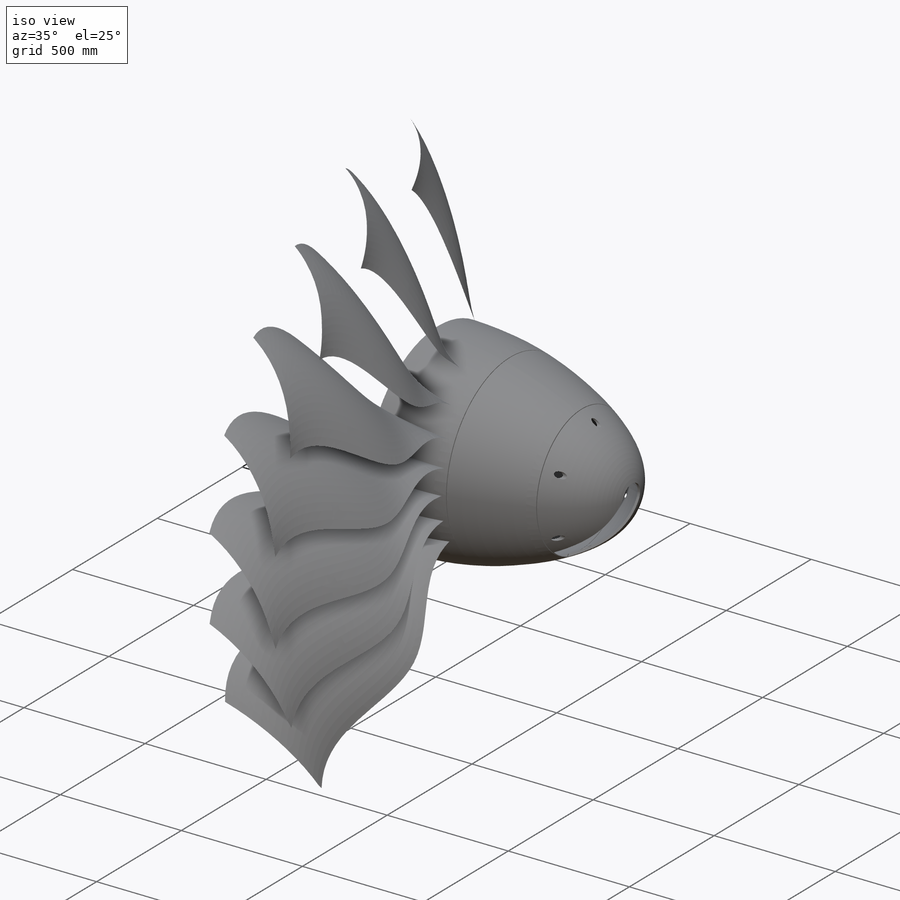
[diagram: iso view]
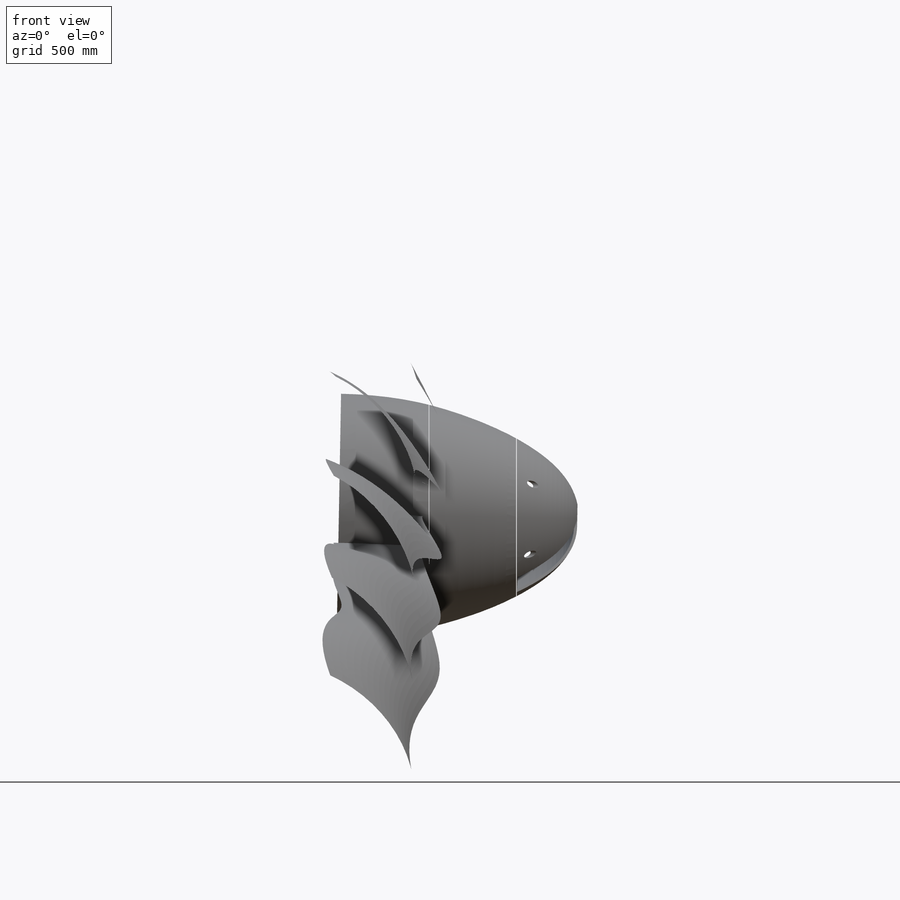
[diagram: front view]
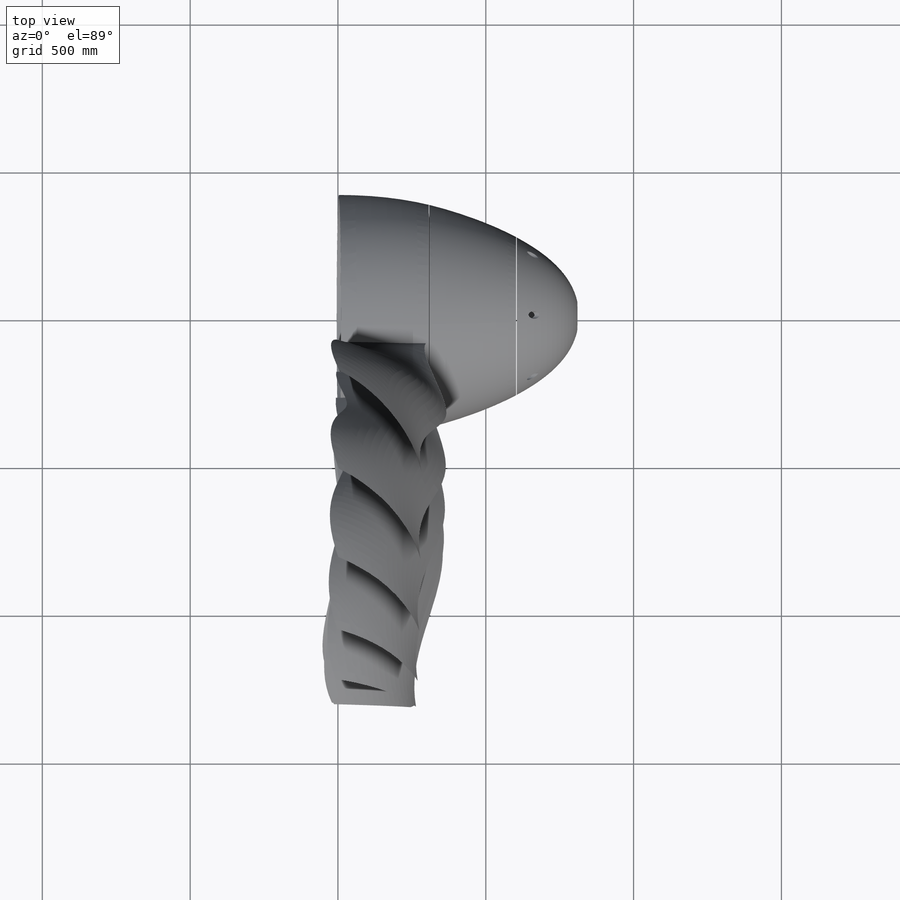
[diagram: top view]
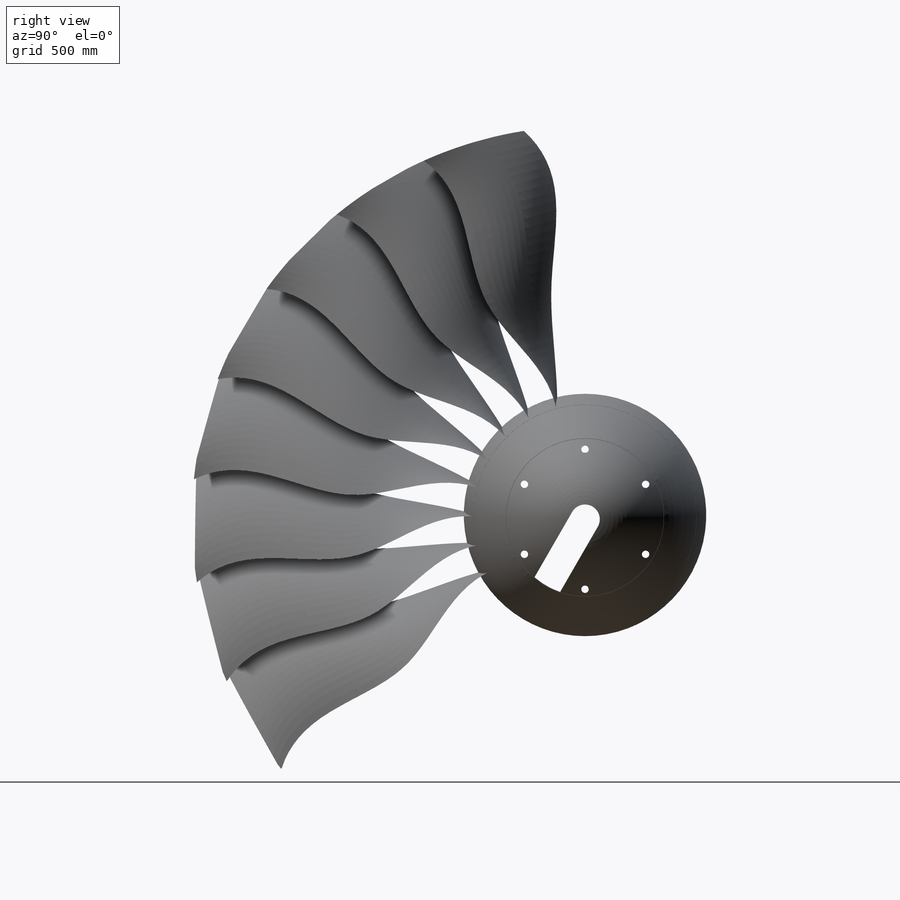
[diagram: right view]
SOLIDWORKS PART (.sldprt)
format: sldprt  version: not decoded by parser v0  size: 1,367,552 bytes
history: native  units: mm
features: sketch x11, plane x4, pattern_circular x2, cut_extrude x2, material x1, revolve x1, surface_op x1, cut_revolve x1 (+12 scaffold rows collapsed)
feature tree (35):
  scaffold x12  (default folders/planes/origin — collapsed)
  material  "Material <not specified>"
  sketch  "Sketch1"  dims[D1=300.0mm]
  plane  "Plane1"  Offset=180mm
  plane  "Plane2"  Offset=230mm
  plane  "Plane3"  Offset=320mm
  plane  "Plane4"  Offset=220mm
  sketch  "Sketch3"  dims[D1=40.0mm D2=131.0mm D3=28.0mm D4=309.0mm D5=35.0mm D6=3.7mm]
  sketch  "Sketch4"  dims[D1=31.5mm D2=90.0mm D3=198.0mm D4=37.88mm D5=132.9mm D6=367.55mm]
  sketch  "Sketch5"  dims[D1=19.57mm D2=186.67mm D3=184.56mm D4=60.0mm D5=301.5mm D6=142.58mm]
  sketch  "Sketch6"  dims[D1=230.0mm D2=288.0mm D3=243.21mm D4=104.5mm D5=64.51mm D6=110.0mm D7=7.56mm D8=132.2mm]
  sketch  "3DSketch1"
  sketch  "Sketch7"  dims[D1=814.92mm D2=1330.0mm D3=777.8mm D4=127.8mm D5=640.2mm D6=252.0mm D7=444.5mm D8=344.55mm D9=380.57mm D10=333.5mm D11=233.34mm D12=403.5mm D13=110.8mm D14=419.5mm D15=10.5mm D16=424.65mm D17=10.0mm]
  revolve  "Revolve3"  Angle=360deg
  pattern_circular  "CirPattern2"  Count=24 Angle=360deg
  sketch  "Sketch12"
  surface_op  "Surface-Extrude3"
  pattern_circular  "Surface-Trim8"  [2 undecoded]
  sketch  "Sketch13"  dims[D1=2.0mm D2=2.0mm]
  cut_revolve  "Cut-Revolve1"  Angle=360deg
  sketch  "Sketch14"  dims[c1.D1=25.0mm c1.D2=~215.013606mm c2.D2=60.0deg c2.D3=205.0mm c2.D4=6.0]
  cut_extrude  "Cut-Extrude1"  Depth=680mm
  sketch  "Sketch15"  dims[c1.D1=100.0mm c1.D2=~263.757592mm c1.D3=260.0mm c2.D3=30.0deg]
  cut_extrude  "Cut-Extrude2"  Depth=914mm
decode coverage: 14 of 18 modeling features carry decoded parameters
note: ~ marks probable driven/reference dimensions
note: 2 parameter values undecoded
note: suppression state not decoded; provenance and decode notes live in map.json
